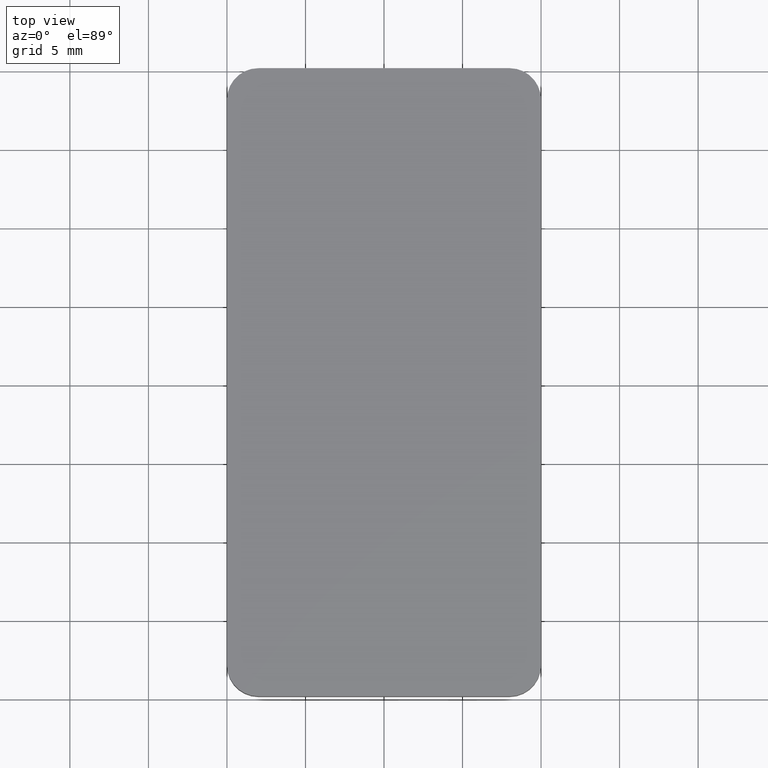
[diagram: clean part render]
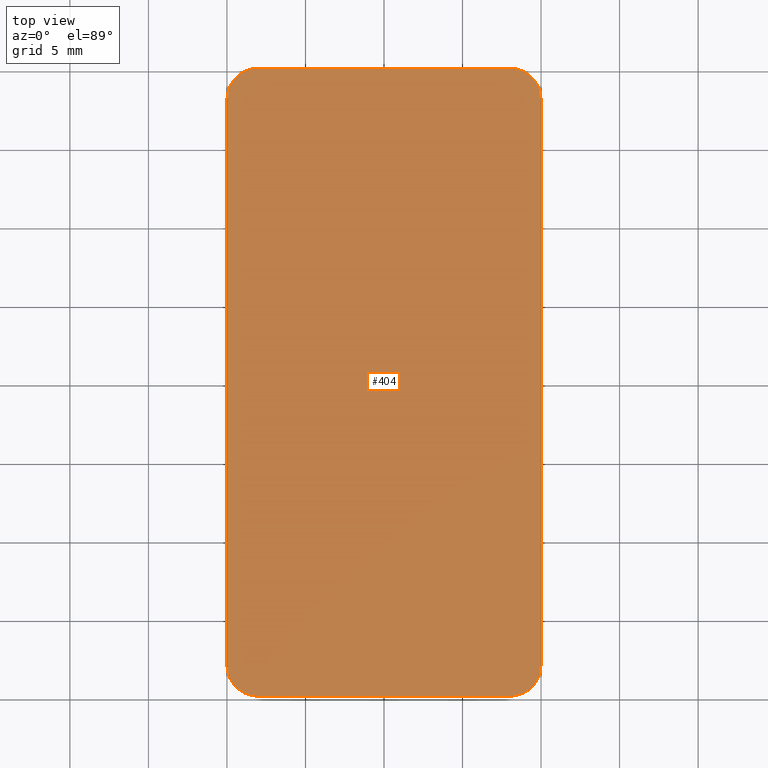
[diagram: same view with one face highlighted and labeled with its STEP entity id]
A machine part, top view. The second image highlights one B-rep face of the part: STEP entity #404.
In plain terms, the highlighted planar face has unit normal (0, 0, -1).
Its self-contained STEP definition (entity closure, byte-faithful):
#49=CARTESIAN_POINT('',(19.999999999999986,-17.999999999999996,3.000000000000003));
#50=VERTEX_POINT('',#49);
#51=CARTESIAN_POINT('',(17.999999999999986,-19.999999999999996,3.000000000000002));
#52=VERTEX_POINT('',#51);
#53=CARTESIAN_POINT('',(17.999999999999986,-17.999999999999996,3.000000000000002));
#54=DIRECTION('',(1.224647E-016,0.0,-1.0));
#55=DIRECTION('',(-1.0,0.0,-1.224647E-016));
#56=AXIS2_PLACEMENT_3D('',#53,#54,#55);
#57=CIRCLE('',#56,2.000000000000001);
#58=EDGE_CURVE('',#50,#52,#57,.T.);
#91=CARTESIAN_POINT('',(2.000000000000007,-19.999999999999996,3.000000000000000));
#92=VERTEX_POINT('',#91);
#93=CARTESIAN_POINT('',(17.999999999999986,-19.999999999999996,3.000000000000002));
#94=DIRECTION('',(-1.0,0.0,0.0));
#95=VECTOR('',#94,15.999999999999979);
#96=LINE('',#93,#95);
#97=EDGE_CURVE('',#52,#92,#96,.T.);
#122=CARTESIAN_POINT('',(-3.673940E-016,-17.999999999999996,3.0));
#123=VERTEX_POINT('',#122);
#124=CARTESIAN_POINT('',(2.000000000000007,-17.999999999999996,3.000000000000000));
#125=DIRECTION('',(1.224647E-016,0.0,-1.0));
#126=DIRECTION('',(1.0,0.0,1.224647E-016));
#127=AXIS2_PLACEMENT_3D('',#124,#125,#126);
#128=CIRCLE('',#127,2.000000000000001);
#129=EDGE_CURVE('',#92,#123,#128,.T.);
#155=CARTESIAN_POINT('',(-3.673940E-016,17.999999999999993,3.0));
#156=VERTEX_POINT('',#155);
#157=CARTESIAN_POINT('',(-3.673940E-016,-17.999999999999996,3.0));
#158=DIRECTION('',(0.0,1.0,0.0));
#159=VECTOR('',#158,35.999999999999993);
#160=LINE('',#157,#159);
#161=EDGE_CURVE('',#123,#156,#160,.T.);
#186=CARTESIAN_POINT('',(2.000000000000007,19.999999999999996,3.000000000000000));
#187=VERTEX_POINT('',#186);
#188=CARTESIAN_POINT('',(2.000000000000007,17.999999999999993,3.000000000000000));
#189=DIRECTION('',(1.224647E-016,0.0,-1.0));
#190=DIRECTION('',(1.0,0.0,1.224647E-016));
#191=AXIS2_PLACEMENT_3D('',#188,#189,#190);
#192=CIRCLE('',#191,2.000000000000001);
#193=EDGE_CURVE('',#156,#187,#192,.T.);
#219=CARTESIAN_POINT('',(18.000000000000007,19.999999999999996,3.000000000000002));
#220=VERTEX_POINT('',#219);
#221=CARTESIAN_POINT('',(2.000000000000007,19.999999999999996,3.000000000000000));
#222=DIRECTION('',(1.0,0.0,0.0));
#223=VECTOR('',#222,16.0);
#224=LINE('',#221,#223);
#225=EDGE_CURVE('',#187,#220,#224,.T.);
#250=CARTESIAN_POINT('',(20.000000000000007,17.999999999999993,3.000000000000003));
#251=VERTEX_POINT('',#250);
#252=CARTESIAN_POINT('',(18.000000000000007,17.999999999999993,3.000000000000002));
#253=DIRECTION('',(1.224647E-016,0.0,-1.0));
#254=DIRECTION('',(-1.0,0.0,-1.224647E-016));
#255=AXIS2_PLACEMENT_3D('',#252,#253,#254);
#256=CIRCLE('',#255,2.000000000000001);
#257=EDGE_CURVE('',#220,#251,#256,.T.);
#283=CARTESIAN_POINT('',(20.000000000000007,17.999999999999993,3.000000000000003));
#284=DIRECTION('',(0.0,-1.0,0.0));
#285=VECTOR('',#284,35.999999999999993);
#286=LINE('',#283,#285);
#287=EDGE_CURVE('',#251,#50,#286,.T.);
#389=CARTESIAN_POINT('',(21.000000000000007,-21.999999999999996,3.000000000000003));
#390=DIRECTION('',(0.0,0.0,-1.0));
#391=DIRECTION('',(-1.0,0.0,0.0));
#392=AXIS2_PLACEMENT_3D('',#389,#390,#391);
#393=PLANE('',#392);
#394=ORIENTED_EDGE('',*,*,#58,.F.);
#395=ORIENTED_EDGE('',*,*,#287,.F.);
#396=ORIENTED_EDGE('',*,*,#257,.F.);
#397=ORIENTED_EDGE('',*,*,#225,.F.);
#398=ORIENTED_EDGE('',*,*,#193,.F.);
#399=ORIENTED_EDGE('',*,*,#161,.F.);
#400=ORIENTED_EDGE('',*,*,#129,.F.);
#401=ORIENTED_EDGE('',*,*,#97,.F.);
#402=EDGE_LOOP('',(#394,#395,#396,#397,#398,#399,#400,#401));
#403=FACE_OUTER_BOUND('',#402,.T.);
#404=ADVANCED_FACE('',(#403),#393,.F.);